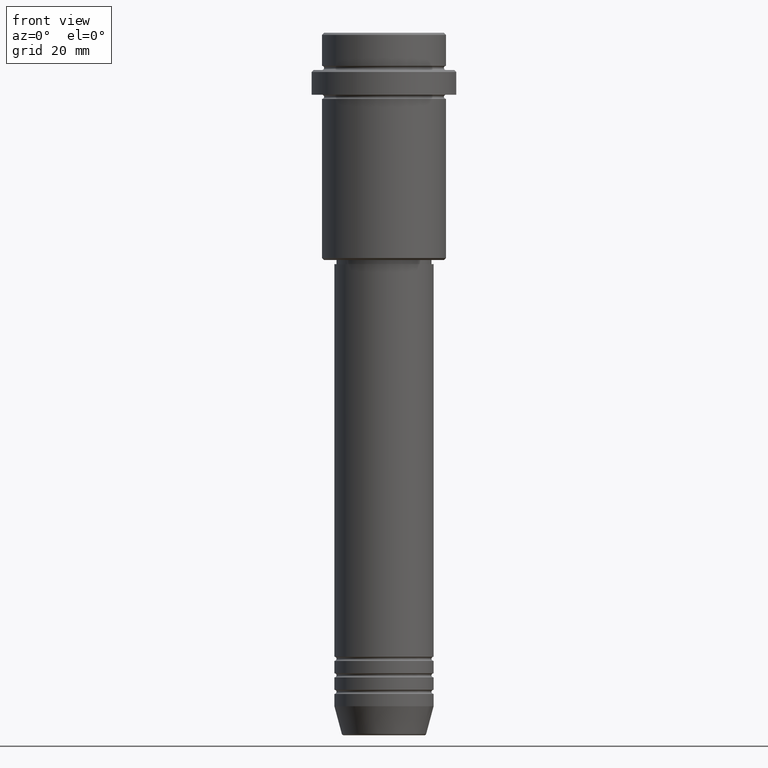
[diagram: clean part render]
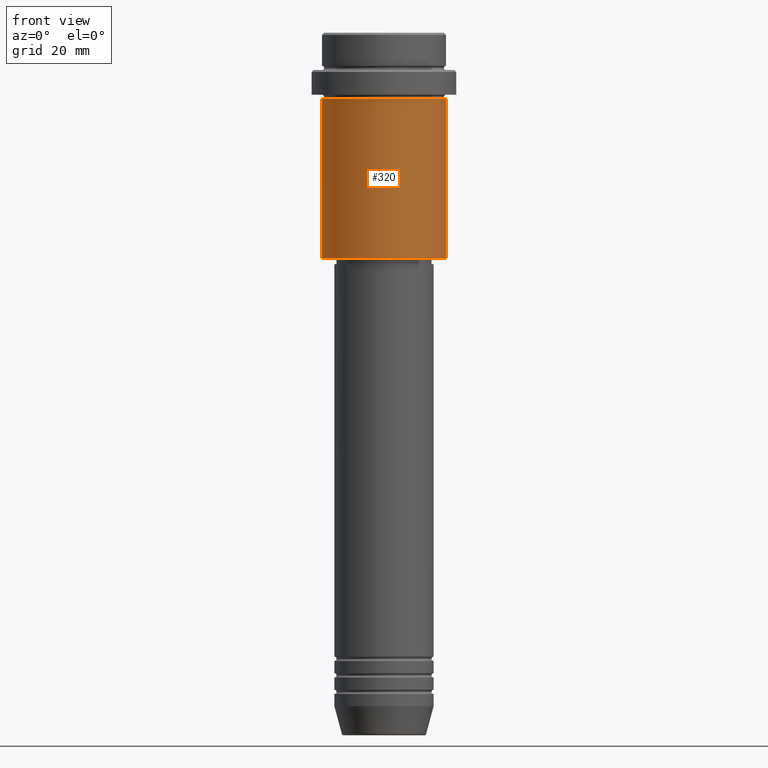
[diagram: same view with one face highlighted and labeled with its STEP entity id]
A machine part, front view. The second image highlights one B-rep face of the part: STEP entity #320.
In plain terms, the highlighted cylindrical surface (partial cylindrical patch) has radius 15 mm, axis along (-0, -0, 1).
Its self-contained STEP definition (entity closure, byte-faithful):
#60 = FACE_OUTER_BOUND ( 'NONE', #1340, .T. ) ;
#78 = CARTESIAN_POINT ( 'NONE',  ( -15.00000000000000000, 1.836970198721029589E-15, 0.000000000000000000 ) ) ;
#80 = AXIS2_PLACEMENT_3D ( 'NONE', #276, #717, #614 ) ;
#162 = DIRECTION ( 'NONE',  ( 1.000000000000000000, 0.000000000000000000, 0.000000000000000000 ) ) ;
#276 = CARTESIAN_POINT ( 'NONE',  ( 0.000000000000000000, 0.000000000000000000, -54.49999999999995737 ) ) ;
#280 = ORIENTED_EDGE ( 'NONE', *, *, #448, .F. ) ;
#320 = ADVANCED_FACE ( 'NONE', ( #60 ), #696, .T. ) ;
#325 = CARTESIAN_POINT ( 'NONE',  ( 15.00000000000000000, 0.000000000000000000, 0.000000000000000000 ) ) ;
#326 = ORIENTED_EDGE ( 'NONE', *, *, #998, .T. ) ;
#329 = EDGE_CURVE ( 'NONE', #666, #899, #529, .T. ) ;
#448 = EDGE_CURVE ( 'NONE', #666, #879, #531, .T. ) ;
#529 = CIRCLE ( 'NONE', #80, 15.00000000000000000 ) ;
#531 = LINE ( 'NONE', #78, #681 ) ;
#576 = CARTESIAN_POINT ( 'NONE',  ( 15.00000000000000000, 0.000000000000000000, -54.49999999999995737 ) ) ;
#614 = DIRECTION ( 'NONE',  ( -1.000000000000000000, 0.000000000000000000, 0.000000000000000000 ) ) ;
#666 = VERTEX_POINT ( 'NONE', #909 ) ;
#681 = VECTOR ( 'NONE', #848, 1000.000000000000000 ) ;
#696 = CYLINDRICAL_SURFACE ( 'NONE', #703, 15.00000000000000000 ) ;
#703 = AXIS2_PLACEMENT_3D ( 'NONE', #1126, #1253, #162 ) ;
#717 = DIRECTION ( 'NONE',  ( -0.000000000000000000, -0.000000000000000000, 1.000000000000000000 ) ) ;
#767 = CARTESIAN_POINT ( 'NONE',  ( 15.00000000000000178, 0.000000000000000000, -15.99999999999997335 ) ) ;
#831 = VERTEX_POINT ( 'NONE', #767 ) ;
#848 = DIRECTION ( 'NONE',  ( -0.000000000000000000, -0.000000000000000000, 1.000000000000000000 ) ) ;
#879 = VERTEX_POINT ( 'NONE', #1025 ) ;
#899 = VERTEX_POINT ( 'NONE', #576 ) ;
#909 = CARTESIAN_POINT ( 'NONE',  ( -15.00000000000000000, 1.836970198721029589E-15, -54.49999999999995737 ) ) ;
#998 = EDGE_CURVE ( 'NONE', #899, #831, #1414, .T. ) ;
#1025 = CARTESIAN_POINT ( 'NONE',  ( -15.00000000000000355, 1.836970198721029983E-15, -15.99999999999997335 ) ) ;
#1054 = DIRECTION ( 'NONE',  ( -0.000000000000000000, -0.000000000000000000, 1.000000000000000000 ) ) ;
#1062 = CIRCLE ( 'NONE', #1107, 15.00000000000000178 ) ;
#1095 = EDGE_CURVE ( 'NONE', #879, #831, #1062, .T. ) ;
#1107 = AXIS2_PLACEMENT_3D ( 'NONE', #1159, #1382, #1272 ) ;
#1126 = CARTESIAN_POINT ( 'NONE',  ( 0.000000000000000000, 0.000000000000000000, 0.000000000000000000 ) ) ;
#1136 = ORIENTED_EDGE ( 'NONE', *, *, #329, .T. ) ;
#1159 = CARTESIAN_POINT ( 'NONE',  ( 0.000000000000000000, 0.000000000000000000, -15.99999999999997335 ) ) ;
#1193 = VECTOR ( 'NONE', #1054, 1000.000000000000000 ) ;
#1199 = ORIENTED_EDGE ( 'NONE', *, *, #1095, .F. ) ;
#1253 = DIRECTION ( 'NONE',  ( -0.000000000000000000, -0.000000000000000000, 1.000000000000000000 ) ) ;
#1272 = DIRECTION ( 'NONE',  ( 1.000000000000000000, 0.000000000000000000, 0.000000000000000000 ) ) ;
#1340 = EDGE_LOOP ( 'NONE', ( #280, #1136, #326, #1199 ) ) ;
#1382 = DIRECTION ( 'NONE',  ( -0.000000000000000000, -0.000000000000000000, 1.000000000000000000 ) ) ;
#1414 = LINE ( 'NONE', #325, #1193 ) ;